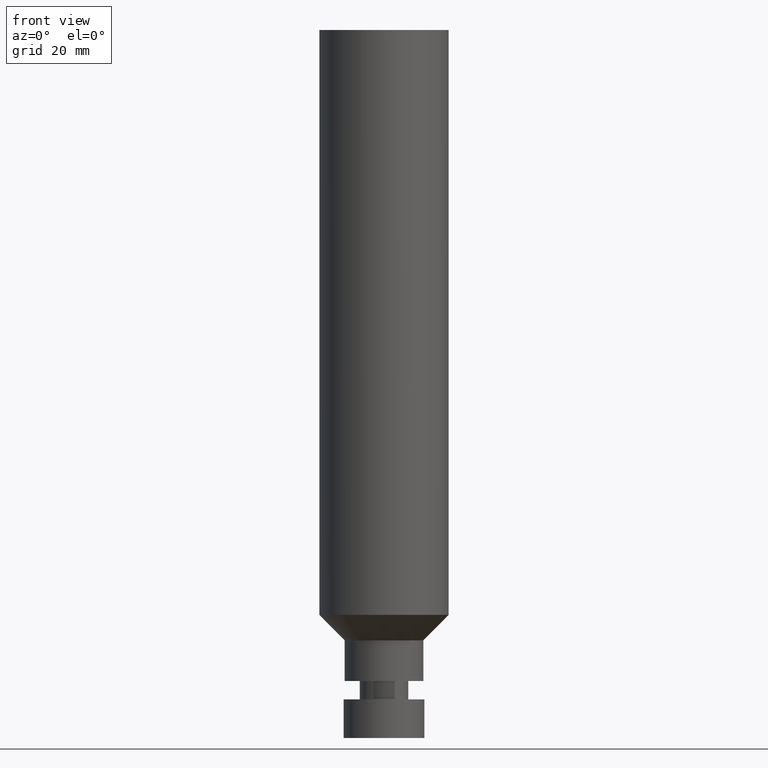
[diagram: clean part render]
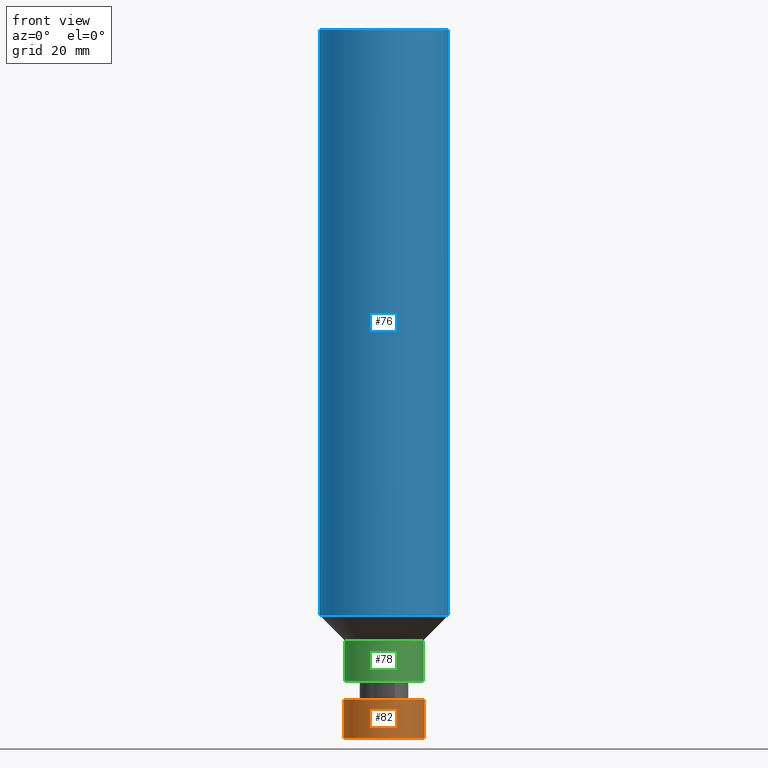
[diagram: same view with three faces highlighted in distinct colors, each labeled with its STEP entity id]
A machine part, front view with three faces highlighted in distinct colors.
Their STEP definitions:

[orange] entity #82 — the highlighted cylindrical surface (bore or boss wall) has radius 10 mm, axis along (-0, -0, 1).
#82=ADVANCED_FACE('',(#105,#106),#107,.T.);
#105=FACE_BOUND('',#130,.T.);
#106=FACE_BOUND('',#131,.T.);
#107=CYLINDRICAL_SURFACE('',#132,10.0);
#130=EDGE_LOOP('',(#169));
#131=EDGE_LOOP('',(#170));
#132=AXIS2_PLACEMENT_3D('',#171,#172,#173);
#169=ORIENTED_EDGE('',*,*,#185,.F.);
#170=ORIENTED_EDGE('',*,*,#184,.T.);
#171=CARTESIAN_POINT('',(-2.90853614797498E-016,-5.81707229594992E-016,4.75));
#172=DIRECTION('',(-6.12323399573677E-017,-1.22464679914735E-016,1.0));
#173=DIRECTION('',(-1.23259516440783E-032,1.0,1.22464679914735E-016));
#184=EDGE_CURVE('',#198,#198,#199,.T.);
#185=EDGE_CURVE('',#200,#200,#201,.T.);
#198=VERTEX_POINT('',#214);
#199=CIRCLE('',#215,10.0);
#200=VERTEX_POINT('',#216);
#201=CIRCLE('',#217,10.0);
#214=CARTESIAN_POINT('',(-5.81707229594994E-016,10.0,9.5));
#215=AXIS2_PLACEMENT_3D('',#236,#237,#238);
#216=CARTESIAN_POINT('',(0.0,10.0,0.0));
#217=AXIS2_PLACEMENT_3D('',#239,#240,#241);
#236=CARTESIAN_POINT('',(-5.81707229594994E-016,-1.16341445918998E-015,9.5));
#237=DIRECTION('',(6.12323399573677E-017,1.22464679914735E-016,-1.0));
#238=DIRECTION('',(-1.23259516440783E-032,1.0,1.22464679914735E-016));
#239=CARTESIAN_POINT('',(0.0,0.0,0.0));
#240=DIRECTION('',(6.12323399573677E-017,1.22464679914735E-016,-1.0));
#241=DIRECTION('',(-1.23259516440783E-032,1.0,1.22464679914735E-016));

[blue] entity #76 — the highlighted cylindrical surface (bore or boss wall) has radius 16 mm, axis along (-0, -0, 1).
#76=ADVANCED_FACE('',(#87,#88),#89,.T.);
#87=FACE_BOUND('',#112,.T.);
#88=FACE_BOUND('',#113,.T.);
#89=CYLINDRICAL_SURFACE('',#114,16.0);
#112=EDGE_LOOP('',(#139));
#113=EDGE_LOOP('',(#140));
#114=AXIS2_PLACEMENT_3D('',#141,#142,#143);
#139=ORIENTED_EDGE('',*,*,#179,.F.);
#140=ORIENTED_EDGE('',*,*,#178,.T.);
#141=CARTESIAN_POINT('',(-6.25335271814617E-015,-1.25067054362923E-014,102.125));
#142=DIRECTION('',(-6.12323399573677E-017,-1.22464679914735E-016,1.0));
#143=DIRECTION('',(-1.23259516440783E-032,1.0,1.22464679914735E-016));
#178=EDGE_CURVE('',#186,#186,#187,.T.);
#179=EDGE_CURVE('',#188,#188,#189,.T.);
#186=VERTEX_POINT('',#202);
#187=CIRCLE('',#203,16.0);
#188=VERTEX_POINT('',#204);
#189=CIRCLE('',#205,16.0);
#202=CARTESIAN_POINT('',(-1.0654427152582E-014,16.0,174.0));
#203=AXIS2_PLACEMENT_3D('',#218,#219,#220);
#204=CARTESIAN_POINT('',(-1.85227828371037E-015,16.0,30.25));
#205=AXIS2_PLACEMENT_3D('',#221,#222,#223);
#218=CARTESIAN_POINT('',(-1.0654427152582E-014,-2.13088543051639E-014,174.0));
#219=DIRECTION('',(6.12323399573677E-017,1.22464679914735E-016,-1.0));
#220=DIRECTION('',(-1.23259516440783E-032,1.0,1.22464679914735E-016));
#221=CARTESIAN_POINT('',(-1.85227828371037E-015,-3.70455656742074E-015,30.25));
#222=DIRECTION('',(6.12323399573677E-017,1.22464679914735E-016,-1.0));
#223=DIRECTION('',(-1.23259516440783E-032,1.0,1.22464679914735E-016));

[green] entity #78 — the highlighted cylindrical surface (bore or boss wall) has radius 9.75 mm, axis along (-0, -0, 1).
#78=ADVANCED_FACE('',(#93,#94),#95,.T.);
#93=FACE_BOUND('',#118,.T.);
#94=FACE_BOUND('',#119,.T.);
#95=CYLINDRICAL_SURFACE('',#120,9.75);
#118=EDGE_LOOP('',(#149));
#119=EDGE_LOOP('',(#150));
#120=AXIS2_PLACEMENT_3D('',#151,#152,#153);
#149=ORIENTED_EDGE('',*,*,#181,.F.);
#150=ORIENTED_EDGE('',*,*,#180,.T.);
#151=CARTESIAN_POINT('',(-1.16341445918999E-015,-2.32682891837997E-015,19.0));
#152=DIRECTION('',(-6.12323399573677E-017,-1.22464679914735E-016,1.0));
#153=DIRECTION('',(-1.23259516440783E-032,1.0,1.22464679914735E-016));
#180=EDGE_CURVE('',#190,#190,#191,.T.);
#181=EDGE_CURVE('',#192,#192,#193,.T.);
#190=VERTEX_POINT('',#206);
#191=CIRCLE('',#207,9.75);
#192=VERTEX_POINT('',#208);
#193=CIRCLE('',#209,9.75);
#206=CARTESIAN_POINT('',(-1.46957615897682E-015,9.75,24.0));
#207=AXIS2_PLACEMENT_3D('',#224,#225,#226);
#208=CARTESIAN_POINT('',(-8.57252759403148E-016,9.75,14.0));
#209=AXIS2_PLACEMENT_3D('',#227,#228,#229);
#224=CARTESIAN_POINT('',(-1.46957615897682E-015,-2.93915231795365E-015,24.0));
#225=DIRECTION('',(6.12323399573677E-017,1.22464679914735E-016,-1.0));
#226=DIRECTION('',(-1.23259516440783E-032,1.0,1.22464679914735E-016));
#227=CARTESIAN_POINT('',(-8.57252759403148E-016,-1.71450551880629E-015,14.0));
#228=DIRECTION('',(6.12323399573677E-017,1.22464679914735E-016,-1.0));
#229=DIRECTION('',(-1.23259516440783E-032,1.0,1.22464679914735E-016));